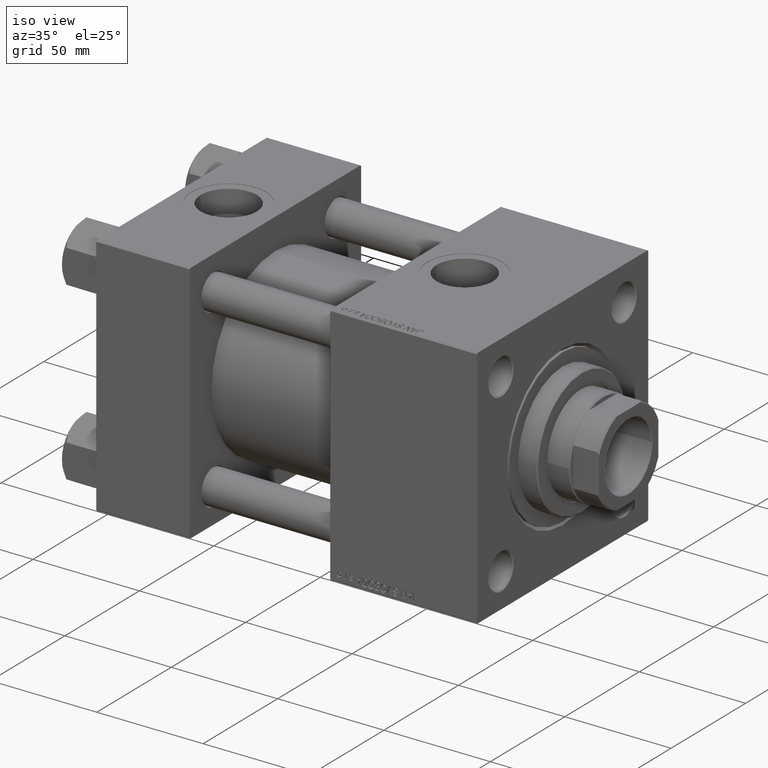
[diagram: clean part render]
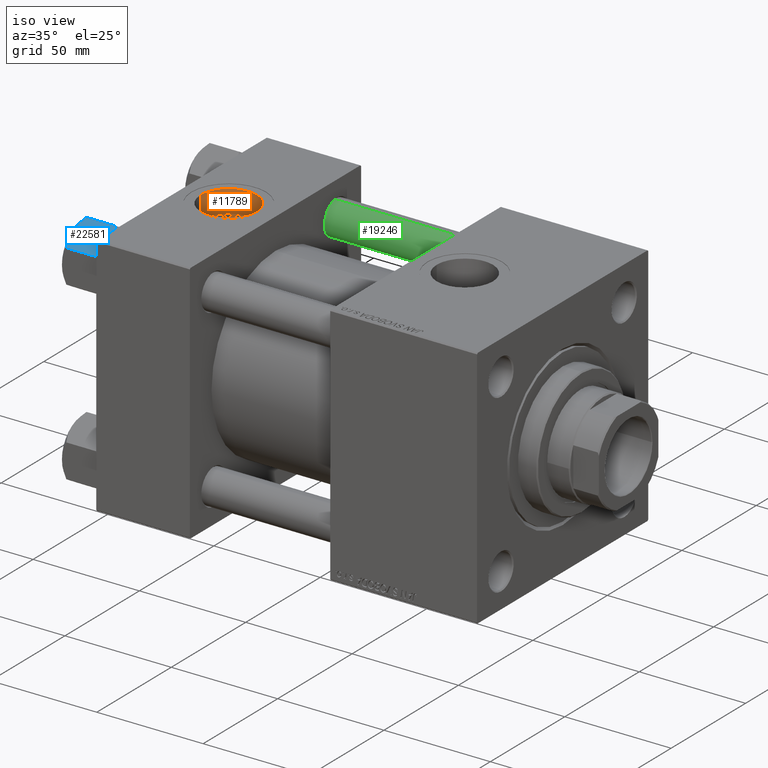
[diagram: same view with three faces highlighted in distinct colors, each labeled with its STEP entity id]
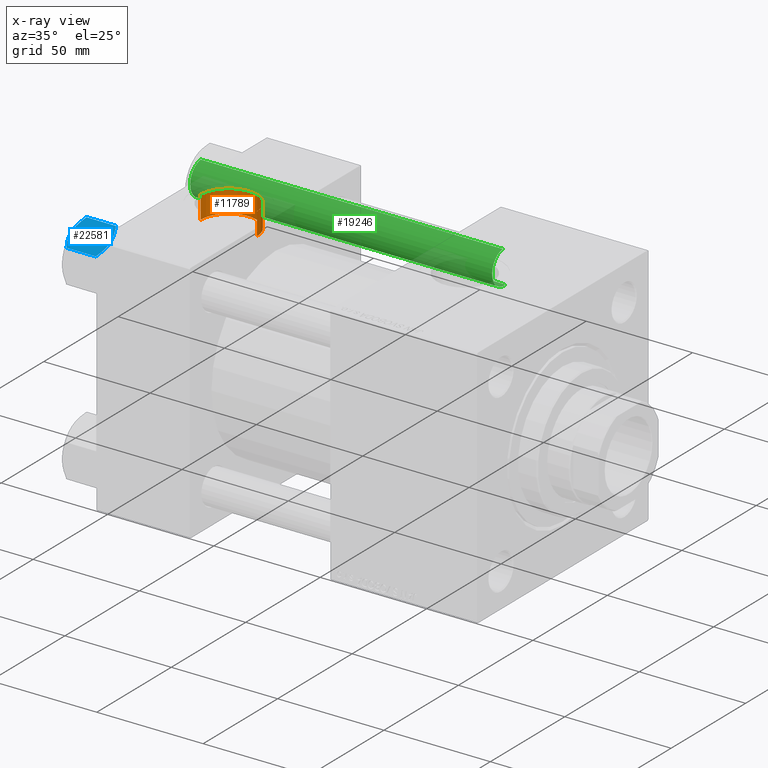
[diagram: x-ray of the same camera — body ghosted, the three highlighted faces saturated]
A machine part, iso view with three faces highlighted in distinct colors.
The next image is the same camera in x-ray (body ghosted, the three faces saturated) — at least one of them is partly hidden behind the body in this view.
Their STEP definitions:

[orange] entity #11789 — the highlighted cylindrical surface (edge-blend (fillet) strip) has radius 13.22 mm, axis along (0, 0, 1).
#619 = VECTOR ( 'NONE', #15424, 1000.000000000000000 ) ;
#732 = DIRECTION ( 'NONE',  ( 1.000000000000000000, 0.000000000000000000, 0.000000000000000000 ) ) ;
#779 = CARTESIAN_POINT ( 'NONE',  ( 8.779999999999994031, -7.054634311411234321E-15, 57.30000000000000426 ) ) ;
#2121 = DIRECTION ( 'NONE',  ( -0.000000000000000000, -0.000000000000000000, 1.000000000000000000 ) ) ;
#3468 = EDGE_CURVE ( 'NONE', #48469, #7924, #39490, .T. ) ;
#4420 = CARTESIAN_POINT ( 'NONE',  ( 35.21999999999999886, -8.673617379884035472E-15, 46.70000000000000284 ) ) ;
#4578 = CARTESIAN_POINT ( 'NONE',  ( 22.00000000000000000, -8.673617379884035472E-15, 46.70000000000000284 ) ) ;
#7924 = VERTEX_POINT ( 'NONE', #21433 ) ;
#8363 = CARTESIAN_POINT ( 'NONE',  ( 22.00000000000000000, -8.673617379884035472E-15, 46.70000000000000284 ) ) ;
#8387 = VECTOR ( 'NONE', #37254, 1000.000000000000000 ) ;
#9509 = EDGE_CURVE ( 'NONE', #7924, #15242, #18370, .T. ) ;
#9622 = AXIS2_PLACEMENT_3D ( 'NONE', #4578, #16611, #732 ) ;
#9883 = ORIENTED_EDGE ( 'NONE', *, *, #17169, .F. ) ;
#11789 = ADVANCED_FACE ( 'NONE', ( #32426 ), #43708, .F. ) ;
#12962 = DIRECTION ( 'NONE',  ( 1.000000000000000000, 0.000000000000000000, 0.000000000000000000 ) ) ;
#15242 = VERTEX_POINT ( 'NONE', #779 ) ;
#15424 = DIRECTION ( 'NONE',  ( -0.000000000000000000, -0.000000000000000000, 1.000000000000000000 ) ) ;
#16050 = CARTESIAN_POINT ( 'NONE',  ( 35.21999999999999886, -8.673617379884035472E-15, 46.70000000000000284 ) ) ;
#16611 = DIRECTION ( 'NONE',  ( 0.000000000000000000, 0.000000000000000000, 1.000000000000000000 ) ) ;
#17169 = EDGE_CURVE ( 'NONE', #48469, #45245, #26820, .T. ) ;
#17373 = DIRECTION ( 'NONE',  ( 0.000000000000000000, 0.000000000000000000, 1.000000000000000000 ) ) ;
#18370 = CIRCLE ( 'NONE', #48657, 13.22000000000000242 ) ;
#18629 = ORIENTED_EDGE ( 'NONE', *, *, #3468, .T. ) ;
#20710 = DIRECTION ( 'NONE',  ( 1.000000000000000000, 0.000000000000000000, 0.000000000000000000 ) ) ;
#21433 = CARTESIAN_POINT ( 'NONE',  ( 35.21999999999999886, -8.673617379884035472E-15, 57.30000000000000426 ) ) ;
#25733 = LINE ( 'NONE', #29577, #8387 ) ;
#26820 = CIRCLE ( 'NONE', #9622, 13.22000000000000242 ) ;
#29577 = CARTESIAN_POINT ( 'NONE',  ( 8.779999999999994031, -7.054634311411234321E-15, 46.70000000000000284 ) ) ;
#32426 = FACE_OUTER_BOUND ( 'NONE', #38614, .T. ) ;
#33567 = ORIENTED_EDGE ( 'NONE', *, *, #46188, .F. ) ;
#34386 = CARTESIAN_POINT ( 'NONE',  ( 8.779999999999994031, -7.054634311411234321E-15, 46.70000000000000284 ) ) ;
#37254 = DIRECTION ( 'NONE',  ( -0.000000000000000000, -0.000000000000000000, 1.000000000000000000 ) ) ;
#38614 = EDGE_LOOP ( 'NONE', ( #33567, #9883, #18629, #42091 ) ) ;
#39490 = LINE ( 'NONE', #4420, #619 ) ;
#41351 = AXIS2_PLACEMENT_3D ( 'NONE', #8363, #2121, #12962 ) ;
#42091 = ORIENTED_EDGE ( 'NONE', *, *, #9509, .T. ) ;
#43708 = CYLINDRICAL_SURFACE ( 'NONE', #41351, 13.22000000000000242 ) ;
#43775 = CARTESIAN_POINT ( 'NONE',  ( 22.00000000000000000, -8.673617379884035472E-15, 57.30000000000000426 ) ) ;
#45245 = VERTEX_POINT ( 'NONE', #34386 ) ;
#46188 = EDGE_CURVE ( 'NONE', #45245, #15242, #25733, .T. ) ;
#48469 = VERTEX_POINT ( 'NONE', #16050 ) ;
#48657 = AXIS2_PLACEMENT_3D ( 'NONE', #43775, #17373, #20710 ) ;

[blue] entity #22581 — the highlighted planar face has unit normal (0, 0.5, -0.866).
#975 = CARTESIAN_POINT ( 'NONE',  ( -13.99051971937273997, 2.822342635978005276, -0.7317196846281108780 ) ) ;
#1274 = EDGE_LOOP ( 'NONE', ( #16512, #11929, #40867, #42262, #23261, #26353, #20477, #26044, #37305, #34151 ) ) ;
#1768 = CARTESIAN_POINT ( 'NONE',  ( -15.61999999999999567, 8.023367828467702033E-15, -16.00000000000000000 ) ) ;
#1909 = CARTESIAN_POINT ( 'NONE',  ( -7.903528262322682352, 13.36532110482641400, -16.00000000000000000 ) ) ;
#2278 = VECTOR ( 'NONE', #23908, 999.9999999999998863 ) ;
#2953 = DIRECTION ( 'NONE',  ( -0.4999999999999999445, -0.8660254037844387076, 0.000000000000000000 ) ) ;
#3602 = VECTOR ( 'NONE', #39108, 1000.000000000000000 ) ;
#4549 = CARTESIAN_POINT ( 'NONE',  ( -13.02784502466562522, 4.489744118371585380, -0.1971866459924509485 ) ) ;
#5827 = DIRECTION ( 'NONE',  ( 0.4999999999999998890, 0.8660254037844385966, 0.000000000000000000 ) ) ;
#6321 = DIRECTION ( 'NONE',  ( 0.8660254037844387076, -0.4999999999999999445, 0.000000000000000000 ) ) ;
#6666 = VERTEX_POINT ( 'NONE', #33742 ) ;
#7096 = EDGE_CURVE ( 'NONE', #43649, #47458, #44172, .T. ) ;
#7381 = CARTESIAN_POINT ( 'NONE',  ( -14.92760668674624114, 1.199260397376460840, -16.58801072835992940 ) ) ;
#8859 = CARTESIAN_POINT ( 'NONE',  ( -11.05297796109638675, 7.910314210667875656, -17.99999999999999645 ) ) ;
#9230 = CARTESIAN_POINT ( 'NONE',  ( -15.52647173767731736, 0.1619957022865152474, -16.00000000000000000 ) ) ;
#10169 = PLANE ( 'NONE',  #30169 ) ;
#11929 = ORIENTED_EDGE ( 'NONE', *, *, #7096, .T. ) ;
#15116 = CARTESIAN_POINT ( 'NONE',  ( -15.61999999999999567, 8.023367828467702033E-15, -16.00000000000000000 ) ) ;
#15305 = CARTESIAN_POINT ( 'NONE',  ( -15.52647173767731736, 0.1619957022865152474, -16.00000000000000000 ) ) ;
#16224 = CARTESIAN_POINT ( 'NONE',  ( -15.61999999999999567, 8.023367828467702033E-15, -16.00000000000000000 ) ) ;
#16512 = ORIENTED_EDGE ( 'NONE', *, *, #17626, .F. ) ;
#17279 = CARTESIAN_POINT ( 'NONE',  ( -15.61999999999999567, 8.023367828467702033E-15, -18.00000000000000000 ) ) ;
#17393 = DIRECTION ( 'NONE',  ( 0.4999999999999999445, 0.8660254037844387076, 0.000000000000000000 ) ) ;
#17606 = CARTESIAN_POINT ( 'NONE',  ( -11.04378428799594758, 7.926238119586002995, -0.05089381635301037932 ) ) ;
#17626 = EDGE_CURVE ( 'NONE', #43649, #33904, #39009, .T. ) ;
#18323 = CARTESIAN_POINT ( 'NONE',  ( -15.61999999999999567, 8.023367828467702033E-15, -1.999999999999998224 ) ) ;
#19156 = CARTESIAN_POINT ( 'NONE',  ( -12.38621571200405391, 5.601078687526930722, -17.94910618364698252 ) ) ;
#19930 = CARTESIAN_POINT ( 'NONE',  ( -15.52647173767732802, 0.1619957022864961793, -2.000000000000000000 ) ) ;
#19993 = CARTESIAN_POINT ( 'NONE',  ( -7.809999999999996945, 13.52731680711293727, -1.999999999999998224 ) ) ;
#20477 = ORIENTED_EDGE ( 'NONE', *, *, #49288, .F. ) ;
#21139 = CARTESIAN_POINT ( 'NONE',  ( -9.439480280627265074, 10.70497417113491601, -17.26828031537187869 ) ) ;
#21225 = VERTEX_POINT ( 'NONE', #21553 ) ;
#21362 = DIRECTION ( 'NONE',  ( -0.000000000000000000, -0.000000000000000000, 1.000000000000000000 ) ) ;
#21553 = CARTESIAN_POINT ( 'NONE',  ( -7.809999999999996945, 13.52731680711293727, -16.00000000000000000 ) ) ;
#22581 = ADVANCED_FACE ( 'NONE', ( #40906 ), #10169, .F. ) ;
#23001 = CARTESIAN_POINT ( 'NONE',  ( -7.809999999999996945, 13.52731680711293727, -18.00000000000000000 ) ) ;
#23202 = VECTOR ( 'NONE', #21362, 1000.000000000000000 ) ;
#23253 = CARTESIAN_POINT ( 'NONE',  ( -11.71499999999999631, 6.763658403556463306, -18.00000000000000000 ) ) ;
#23261 = ORIENTED_EDGE ( 'NONE', *, *, #24909, .F. ) ;
#23908 = DIRECTION ( 'NONE',  ( 0.4999999999999999445, 0.8660254037844387076, 0.000000000000000000 ) ) ;
#24008 = CARTESIAN_POINT ( 'NONE',  ( -11.71500000000000341, 6.763658403556467746, 0.000000000000000000 ) ) ;
#24740 = CARTESIAN_POINT ( 'NONE',  ( -9.124083218049243271, 11.25125790807802240, -17.05261278537717828 ) ) ;
#24909 = EDGE_CURVE ( 'NONE', #34146, #42020, #25417, .T. ) ;
#24995 = CARTESIAN_POINT ( 'NONE',  ( -7.903528262322682352, 13.36532110482641400, -16.00000000000000000 ) ) ;
#25027 = CARTESIAN_POINT ( 'NONE',  ( -15.61999999999999567, 8.023367828467702033E-15, -1.999999999999998224 ) ) ;
#25295 = CARTESIAN_POINT ( 'NONE',  ( -7.903528262322672582, 13.36532110482643354, -2.000000000000000000 ) ) ;
#25417 = B_SPLINE_CURVE_WITH_KNOTS ( 'NONE', 3,
 ( #25295, #37071, #33230, #41406, #48860, #17606, #25802, #41156 ),
 .UNSPECIFIED., .F., .F.,
 ( 4, 2, 2, 4 ),
 ( 4.472842641835287214E-07, 0.003945636373369305720, 0.005918230917921867007, 0.007890825462474429161 ),
 .UNSPECIFIED. ) ;
#25802 = CARTESIAN_POINT ( 'NONE',  ( -11.38181071908714515, 7.340759166634869715, 4.331726492258492723E-15 ) ) ;
#26044 = ORIENTED_EDGE ( 'NONE', *, *, #49145, .F. ) ;
#26353 = ORIENTED_EDGE ( 'NONE', *, *, #41773, .F. ) ;
#27364 = CARTESIAN_POINT ( 'NONE',  ( -12.04818928091285635, 6.186557640478062225, -17.99999999999999289 ) ) ;
#28093 = CARTESIAN_POINT ( 'NONE',  ( -15.61999999999999567, 8.023367828467702033E-15, -1.999999999999998224 ) ) ;
#30169 = AXIS2_PLACEMENT_3D ( 'NONE', #33988, #6321, #5827 ) ;
#30399 = VECTOR ( 'NONE', #2953, 999.9999999999998863 ) ;
#30893 = VERTEX_POINT ( 'NONE', #33782 ) ;
#31199 = LINE ( 'NONE', #23001, #3602 ) ;
#31932 = CARTESIAN_POINT ( 'NONE',  ( -10.40215497533437805, 9.037572688741343896, -17.80281335400754372 ) ) ;
#32757 = LINE ( 'NONE', #1768, #49302 ) ;
#32817 = VERTEX_POINT ( 'NONE', #19993 ) ;
#33230 = CARTESIAN_POINT ( 'NONE',  ( -9.114548888011780647, 11.26777185211904353, -0.9142282604026925608 ) ) ;
#33317 = B_SPLINE_CURVE_WITH_KNOTS ( 'NONE', 3,
 ( #24008, #39623, #4549, #975, #43245, #35813, #36558, #19930 ),
 .UNSPECIFIED., .F., .F.,
 ( 4, 2, 2, 4 ),
 ( 0.007890825462474429161, 0.01181022244528554845, 0.01376992093669110635, 0.01572961942809666600 ),
 .UNSPECIFIED. ) ;
#33742 = CARTESIAN_POINT ( 'NONE',  ( -15.52647173767732802, 0.1619957022864961793, -2.000000000000000000 ) ) ;
#33782 = CARTESIAN_POINT ( 'NONE',  ( -11.71499999999999631, 6.763658403556463306, -18.00000000000000000 ) ) ;
#33904 = VERTEX_POINT ( 'NONE', #9230 ) ;
#33912 = CARTESIAN_POINT ( 'NONE',  ( -11.71500000000000341, 6.763658403556467746, 0.000000000000000000 ) ) ;
#33988 = CARTESIAN_POINT ( 'NONE',  ( -15.61999999999999567, 8.023367828467702033E-15, -18.00000000000000000 ) ) ;
#34019 = EDGE_CURVE ( 'NONE', #42020, #6666, #33317, .T. ) ;
#34146 = VERTEX_POINT ( 'NONE', #44249 ) ;
#34151 = ORIENTED_EDGE ( 'NONE', *, *, #40688, .F. ) ;
#35813 = CARTESIAN_POINT ( 'NONE',  ( -14.92394044919338825, 1.205610507090627781, -1.434462921875002683 ) ) ;
#36520 = CARTESIAN_POINT ( 'NONE',  ( -8.506059550806625680, 12.32170630002228684, -16.56553707812498288 ) ) ;
#36558 = CARTESIAN_POINT ( 'NONE',  ( -15.22736220980736377, 0.6800686015852189792, -1.706311779141444385 ) ) ;
#36773 = CARTESIAN_POINT ( 'NONE',  ( -11.71499999999999631, 6.763658403556463306, -18.00000000000000000 ) ) ;
#36809 = LINE ( 'NONE', #25027, #38499 ) ;
#36920 = VERTEX_POINT ( 'NONE', #1909 ) ;
#37071 = CARTESIAN_POINT ( 'NONE',  ( -8.502393313253749696, 12.32805640973648309, -1.411989271640067933 ) ) ;
#37305 = ORIENTED_EDGE ( 'NONE', *, *, #47406, .F. ) ;
#38279 = LINE ( 'NONE', #18323, #30399 ) ;
#38499 = VECTOR ( 'NONE', #40893, 999.9999999999998863 ) ;
#38607 = CARTESIAN_POINT ( 'NONE',  ( -14.31545111198820663, 2.259544954993902177, -17.08577173959729123 ) ) ;
#39009 = LINE ( 'NONE', #16224, #2278 ) ;
#39108 = DIRECTION ( 'NONE',  ( -0.000000000000000000, -0.000000000000000000, 1.000000000000000000 ) ) ;
#39623 = CARTESIAN_POINT ( 'NONE',  ( -12.37702203890362185, 5.617002596445053619, 4.300668617525835570E-15 ) ) ;
#40688 = EDGE_CURVE ( 'NONE', #33904, #30893, #46284, .T. ) ;
#40867 = ORIENTED_EDGE ( 'NONE', *, *, #44339, .F. ) ;
#40893 = DIRECTION ( 'NONE',  ( -0.4999999999999999445, -0.8660254037844387076, 0.000000000000000000 ) ) ;
#40906 = FACE_OUTER_BOUND ( 'NONE', #1274, .T. ) ;
#41156 = CARTESIAN_POINT ( 'NONE',  ( -11.71500000000000341, 6.763658403556467746, 0.000000000000000000 ) ) ;
#41406 = CARTESIAN_POINT ( 'NONE',  ( -10.06459418565412278, 9.622245127110613083, -0.3836066851120565890 ) ) ;
#41773 = EDGE_CURVE ( 'NONE', #32817, #34146, #36809, .T. ) ;
#42020 = VERTEX_POINT ( 'NONE', #33912 ) ;
#42262 = ORIENTED_EDGE ( 'NONE', *, *, #34019, .F. ) ;
#43245 = CARTESIAN_POINT ( 'NONE',  ( -14.30591678195076177, 2.276058899034892224, -0.9473872146228117241 ) ) ;
#43649 = VERTEX_POINT ( 'NONE', #15116 ) ;
#44172 = LINE ( 'NONE', #17279, #23202 ) ;
#44249 = CARTESIAN_POINT ( 'NONE',  ( -7.903528262322672582, 13.36532110482643354, -2.000000000000000000 ) ) ;
#44339 = EDGE_CURVE ( 'NONE', #6666, #47458, #38279, .T. ) ;
#46284 = B_SPLINE_CURVE_WITH_KNOTS ( 'NONE', 3,
 ( #15305, #7381, #38607, #46813, #46307, #19156, #27364, #23253 ),
 .UNSPECIFIED., .F., .F.,
 ( 4, 2, 2, 4 ),
 ( 4.472842641925297170E-07, 0.003945636373369303118, 0.005918230917921858333, 0.007890825462474413549 ),
 .UNSPECIFIED. ) ;
#46307 = CARTESIAN_POINT ( 'NONE',  ( -13.04337073483127796, 4.462852799541088267, -17.75691532989869614 ) ) ;
#46813 = CARTESIAN_POINT ( 'NONE',  ( -13.36540581434587693, 3.905071680002328183, -17.61639331488793658 ) ) ;
#47406 = EDGE_CURVE ( 'NONE', #30893, #36920, #48258, .T. ) ;
#47458 = VERTEX_POINT ( 'NONE', #28093 ) ;
#48258 = B_SPLINE_CURVE_WITH_KNOTS ( 'NONE', 3,
 ( #36773, #8859, #31932, #21139, #24740, #36520, #48310, #24995 ),
 .UNSPECIFIED., .F., .F.,
 ( 4, 2, 2, 4 ),
 ( 0.007890825462474413549, 0.01181022244528551549, 0.01376992093669106992, 0.01572961942809662436 ),
 .UNSPECIFIED. ) ;
#48310 = CARTESIAN_POINT ( 'NONE',  ( -8.202637790192651934, 12.84724820552769486, -16.29368822085855228 ) ) ;
#48860 = CARTESIAN_POINT ( 'NONE',  ( -10.38662926516871998, 9.064464007571849891, -0.2430846701012936983 ) ) ;
#49145 = EDGE_CURVE ( 'NONE', #36920, #21225, #32757, .T. ) ;
#49288 = EDGE_CURVE ( 'NONE', #21225, #32817, #31199, .T. ) ;
#49302 = VECTOR ( 'NONE', #17393, 999.9999999999998863 ) ;

[green] entity #19246 — the highlighted cylindrical surface (edge-blend (fillet) strip) has radius 8 mm, axis along (-1, 0, 0).
#1513 = ORIENTED_EDGE ( 'NONE', *, *, #10515, .T. ) ;
#2363 = ORIENTED_EDGE ( 'NONE', *, *, #33213, .T. ) ;
#3391 = CARTESIAN_POINT ( 'NONE',  ( 8.000000000000000000, 9.797174393178825657E-16, 143.0000000000000000 ) ) ;
#3993 = CARTESIAN_POINT ( 'NONE',  ( 8.000000000000000000, 9.797174393178825657E-16, 142.4999999999999716 ) ) ;
#5127 = CIRCLE ( 'NONE', #15755, 8.000000000000000000 ) ;
#5344 = DIRECTION ( 'NONE',  ( -0.000000000000000000, -0.000000000000000000, -1.000000000000000000 ) ) ;
#5760 = DIRECTION ( 'NONE',  ( -0.000000000000000000, -0.000000000000000000, 1.000000000000000000 ) ) ;
#9180 = CARTESIAN_POINT ( 'NONE',  ( -8.000000000000000000, 0.000000000000000000, 143.0000000000000000 ) ) ;
#9352 = CARTESIAN_POINT ( 'NONE',  ( 0.000000000000000000, 0.000000000000000000, 0.4999999999999726885 ) ) ;
#9365 = EDGE_CURVE ( 'NONE', #41512, #27513, #44522, .T. ) ;
#10515 = EDGE_CURVE ( 'NONE', #32319, #41512, #44587, .T. ) ;
#10744 = DIRECTION ( 'NONE',  ( -0.000000000000000000, -0.000000000000000000, -1.000000000000000000 ) ) ;
#14073 = ORIENTED_EDGE ( 'NONE', *, *, #14303, .F. ) ;
#14303 = EDGE_CURVE ( 'NONE', #32319, #16777, #38458, .T. ) ;
#15755 = AXIS2_PLACEMENT_3D ( 'NONE', #9352, #5760, #47085 ) ;
#16777 = VERTEX_POINT ( 'NONE', #29070 ) ;
#18382 = CARTESIAN_POINT ( 'NONE',  ( 0.000000000000000000, 0.000000000000000000, 142.4999999999999716 ) ) ;
#19007 = DIRECTION ( 'NONE',  ( -0.000000000000000000, -0.000000000000000000, -1.000000000000000000 ) ) ;
#19246 = ADVANCED_FACE ( 'NONE', ( #34062 ), #26120, .T. ) ;
#22800 = AXIS2_PLACEMENT_3D ( 'NONE', #38393, #10744, #45578 ) ;
#25058 = VECTOR ( 'NONE', #19007, 1000.000000000000000 ) ;
#25760 = VECTOR ( 'NONE', #5344, 1000.000000000000000 ) ;
#25820 = DIRECTION ( 'NONE',  ( 0.000000000000000000, 0.000000000000000000, -1.000000000000000000 ) ) ;
#26120 = CYLINDRICAL_SURFACE ( 'NONE', #22800, 8.000000000000000000 ) ;
#27513 = VERTEX_POINT ( 'NONE', #50224 ) ;
#29070 = CARTESIAN_POINT ( 'NONE',  ( 8.000000000000000000, 9.797174393178825657E-16, 0.4999999999999726885 ) ) ;
#32319 = VERTEX_POINT ( 'NONE', #3993 ) ;
#33213 = EDGE_CURVE ( 'NONE', #27513, #16777, #5127, .T. ) ;
#34062 = FACE_OUTER_BOUND ( 'NONE', #37922, .T. ) ;
#37585 = DIRECTION ( 'NONE',  ( 1.000000000000000000, 0.000000000000000000, 0.000000000000000000 ) ) ;
#37922 = EDGE_LOOP ( 'NONE', ( #14073, #1513, #46122, #2363 ) ) ;
#38393 = CARTESIAN_POINT ( 'NONE',  ( 0.000000000000000000, 0.000000000000000000, 143.0000000000000000 ) ) ;
#38458 = LINE ( 'NONE', #3391, #25058 ) ;
#41512 = VERTEX_POINT ( 'NONE', #46318 ) ;
#42982 = AXIS2_PLACEMENT_3D ( 'NONE', #18382, #25820, #37585 ) ;
#44522 = LINE ( 'NONE', #9180, #25760 ) ;
#44587 = CIRCLE ( 'NONE', #42982, 8.000000000000000000 ) ;
#45578 = DIRECTION ( 'NONE',  ( -1.000000000000000000, 0.000000000000000000, 0.000000000000000000 ) ) ;
#46122 = ORIENTED_EDGE ( 'NONE', *, *, #9365, .T. ) ;
#46318 = CARTESIAN_POINT ( 'NONE',  ( -8.000000000000000000, 0.000000000000000000, 142.4999999999999716 ) ) ;
#47085 = DIRECTION ( 'NONE',  ( 1.000000000000000000, 0.000000000000000000, 0.000000000000000000 ) ) ;
#50224 = CARTESIAN_POINT ( 'NONE',  ( -8.000000000000000000, 0.000000000000000000, 0.4999999999999726885 ) ) ;